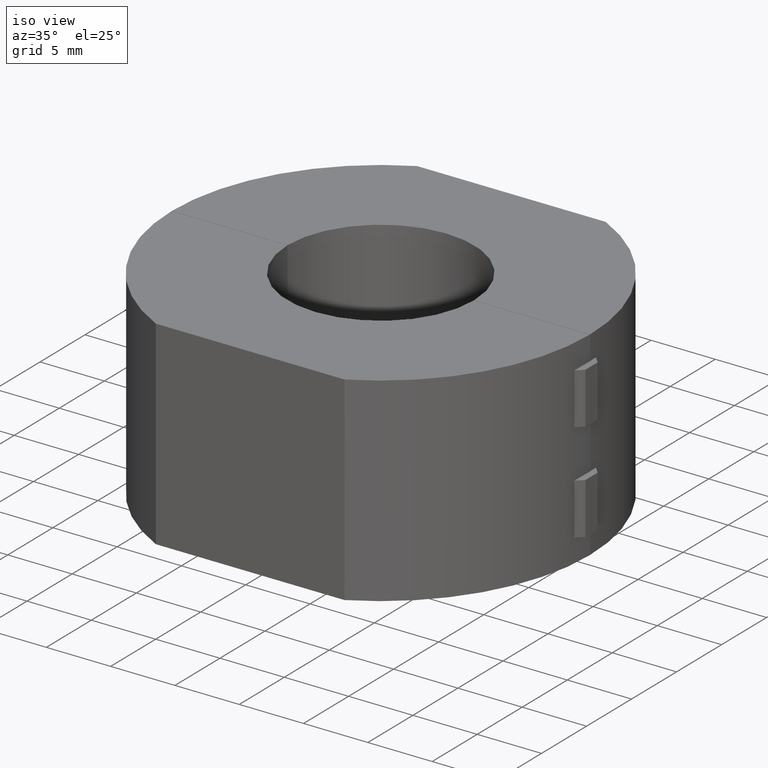
[diagram: clean part render]
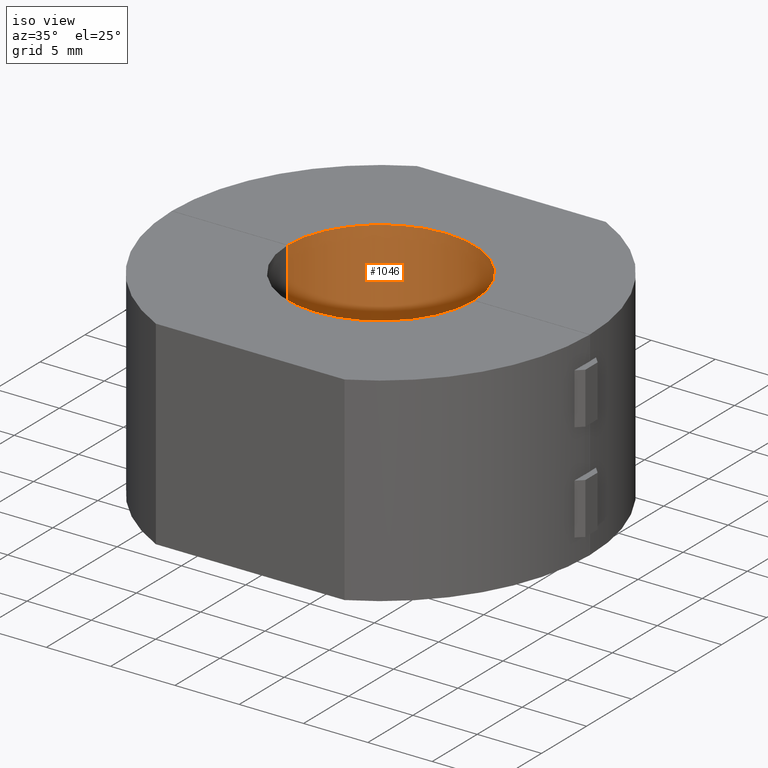
[diagram: same view with one face highlighted and labeled with its STEP entity id]
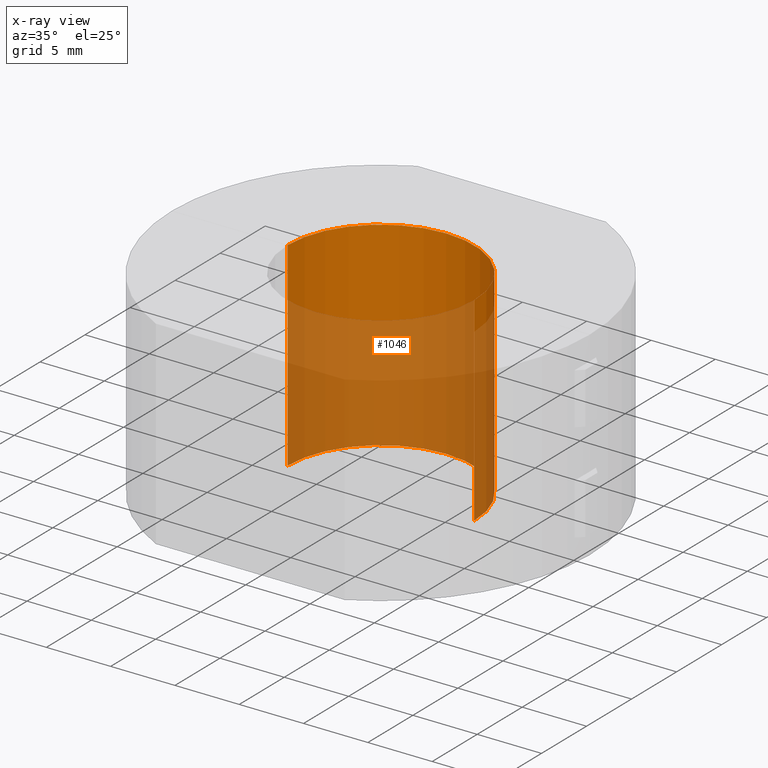
[diagram: x-ray of the same camera — body ghosted, the highlighted face saturated]
A machine part, iso view. The second image highlights one B-rep face of the part: STEP entity #1046.
The next image is the same camera in x-ray: the body ghosted, the highlighted face saturated — about 63% of this face is hidden behind the body in this view.
In plain terms, the highlighted cylindrical surface (partial cylindrical patch) has radius 7.25 mm, axis along (-0, -0, 1).
Its self-contained STEP definition (entity closure, byte-faithful):
#13 = CYLINDRICAL_SURFACE ( 'NONE', #1172, 7.250000000000000900 ) ;
#61 = VERTEX_POINT ( 'NONE', #1125 ) ;
#153 = EDGE_CURVE ( 'NONE', #3000, #1954, #2113, .T. ) ;
#183 = DIRECTION ( 'NONE',  ( -0.0000000000000000000, -0.0000000000000000000, 1.000000000000000000 ) ) ;
#443 = DIRECTION ( 'NONE',  ( 0.0000000000000000000, 0.0000000000000000000, 1.000000000000000000 ) ) ;
#488 = VECTOR ( 'NONE', #513, 1000.000000000000000 ) ;
#498 = EDGE_CURVE ( 'NONE', #1954, #2387, #1180, .T. ) ;
#501 = LINE ( 'NONE', #1778, #2299 ) ;
#513 = DIRECTION ( 'NONE',  ( 0.0000000000000000000, 0.0000000000000000000, -1.000000000000000000 ) ) ;
#539 = ORIENTED_EDGE ( 'NONE', *, *, #153, .T. ) ;
#678 = ORIENTED_EDGE ( 'NONE', *, *, #498, .T. ) ;
#681 = DIRECTION ( 'NONE',  ( 1.000000000000000000, 0.0000000000000000000, 0.0000000000000000000 ) ) ;
#771 = DIRECTION ( 'NONE',  ( 1.000000000000000000, 0.0000000000000000000, 0.0000000000000000000 ) ) ;
#855 = EDGE_LOOP ( 'NONE', ( #539, #678, #2523, #1243 ) ) ;
#891 = CARTESIAN_POINT ( 'NONE',  ( 0.0000000000000000000, 0.0000000000000000000, -7.750000000000000000 ) ) ;
#917 = CARTESIAN_POINT ( 'NONE',  ( 7.249993103444997400, 0.009999999999998898700, 7.750000000000000000 ) ) ;
#926 = DIRECTION ( 'NONE',  ( 1.000000000000000000, 0.0000000000000000000, 0.0000000000000000000 ) ) ;
#1046 = ADVANCED_FACE ( 'NONE', ( #2880 ), #13, .F. ) ;
#1125 = CARTESIAN_POINT ( 'NONE',  ( 7.249993103444997400, 0.009999999999998898700, -7.750000000000000000 ) ) ;
#1167 = EDGE_CURVE ( 'NONE', #61, #3000, #501, .T. ) ;
#1172 = AXIS2_PLACEMENT_3D ( 'NONE', #1701, #1231, #771 ) ;
#1180 = LINE ( 'NONE', #2661, #488 ) ;
#1231 = DIRECTION ( 'NONE',  ( -0.0000000000000000000, -0.0000000000000000000, 1.000000000000000000 ) ) ;
#1243 = ORIENTED_EDGE ( 'NONE', *, *, #1167, .T. ) ;
#1648 = CARTESIAN_POINT ( 'NONE',  ( 0.0000000000000000000, 0.0000000000000000000, 7.750000000000000000 ) ) ;
#1701 = CARTESIAN_POINT ( 'NONE',  ( 0.0000000000000000000, 0.0000000000000000000, -7.750000000000000000 ) ) ;
#1714 = AXIS2_PLACEMENT_3D ( 'NONE', #891, #2144, #926 ) ;
#1760 = CARTESIAN_POINT ( 'NONE',  ( -7.249993103444997400, 0.009999999999997122300, -7.750000000000000000 ) ) ;
#1778 = CARTESIAN_POINT ( 'NONE',  ( 7.249993103444997400, 0.009999999999998898700, -7.750000000000000000 ) ) ;
#1894 = CARTESIAN_POINT ( 'NONE',  ( -7.249993103444997400, 0.009999999999997122300, 7.750000000000000000 ) ) ;
#1954 = VERTEX_POINT ( 'NONE', #1894 ) ;
#2113 = CIRCLE ( 'NONE', #2453, 7.250000000000000900 ) ;
#2144 = DIRECTION ( 'NONE',  ( 0.0000000000000000000, 0.0000000000000000000, 1.000000000000000000 ) ) ;
#2299 = VECTOR ( 'NONE', #183, 1000.000000000000000 ) ;
#2387 = VERTEX_POINT ( 'NONE', #1760 ) ;
#2420 = CIRCLE ( 'NONE', #1714, 7.250000000000000900 ) ;
#2453 = AXIS2_PLACEMENT_3D ( 'NONE', #1648, #443, #681 ) ;
#2523 = ORIENTED_EDGE ( 'NONE', *, *, #2869, .F. ) ;
#2661 = CARTESIAN_POINT ( 'NONE',  ( -7.249993103444997400, 0.009999999999997122300, -7.750000000000000000 ) ) ;
#2869 = EDGE_CURVE ( 'NONE', #61, #2387, #2420, .T. ) ;
#2880 = FACE_OUTER_BOUND ( 'NONE', #855, .T. ) ;
#3000 = VERTEX_POINT ( 'NONE', #917 ) ;